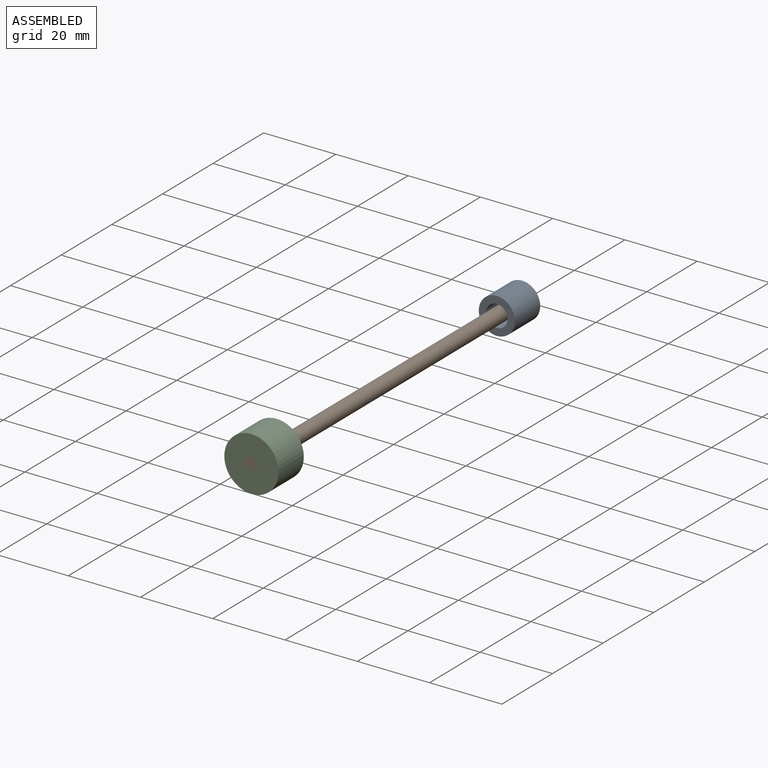
[diagram: assembled view]
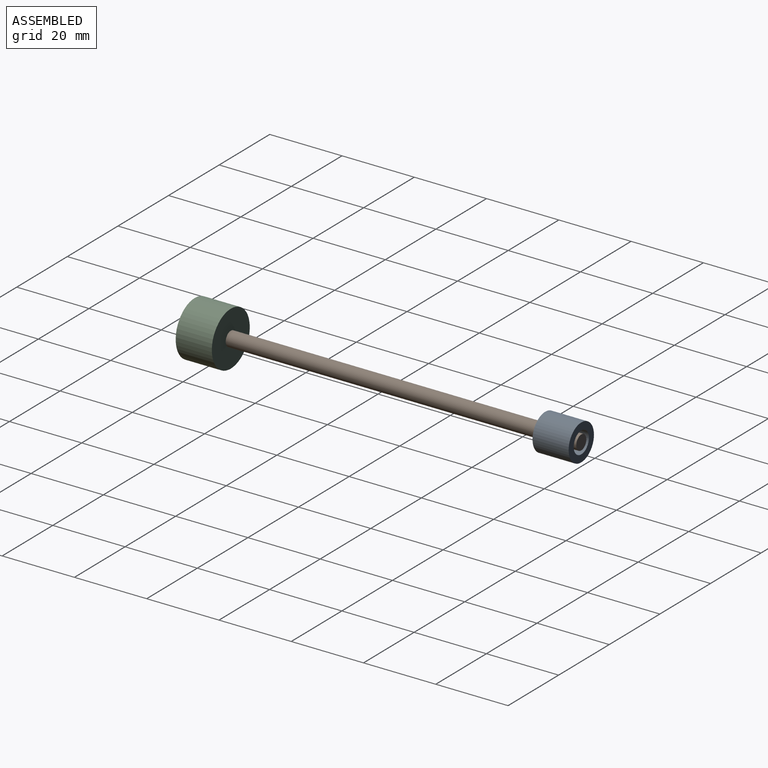
[diagram: assembled view, second angle]
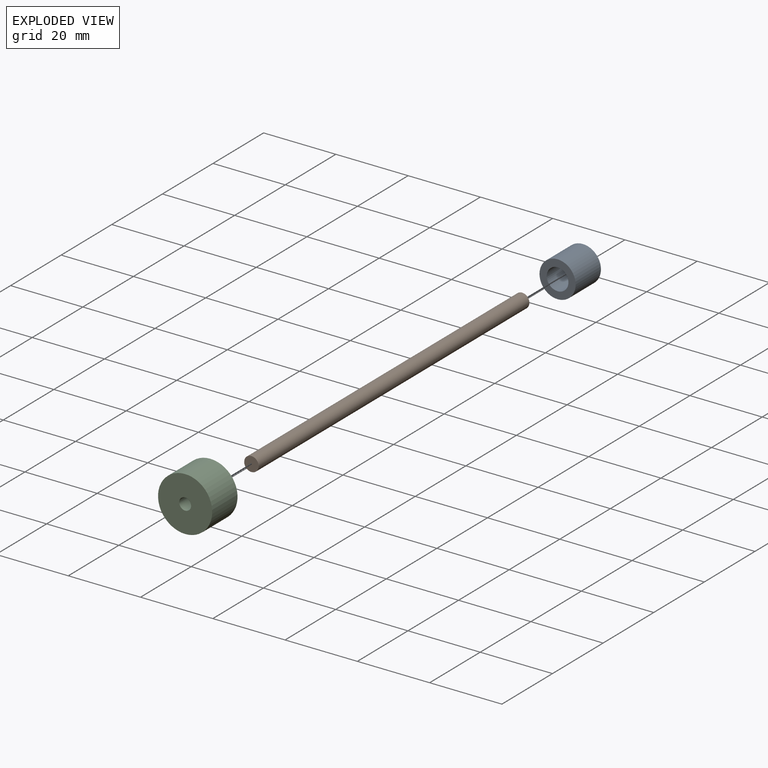
[diagram: exploded view]
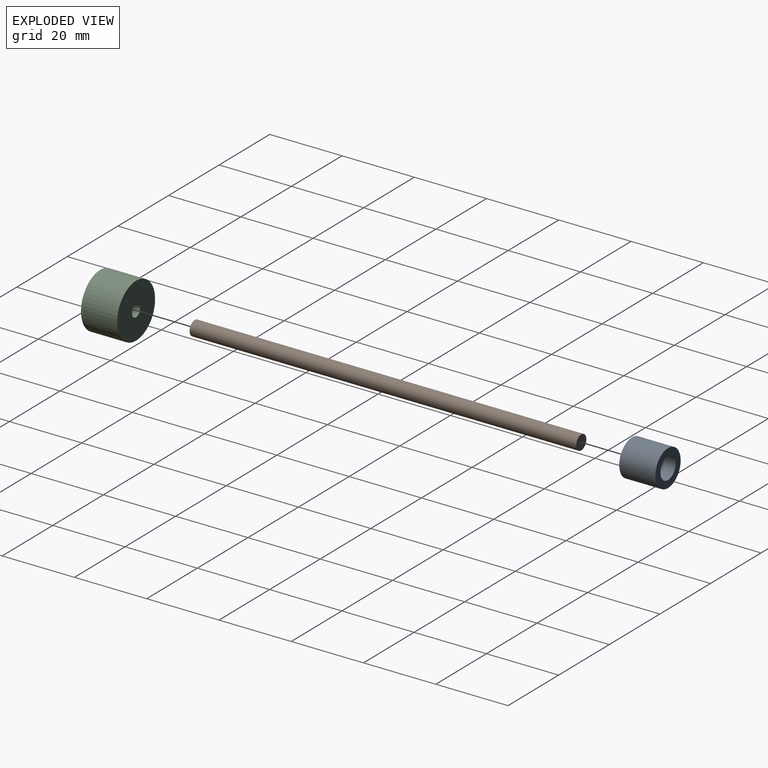
[diagram: exploded view, second angle]
ASSEMBLY  parts=3 mates=2
PART A: 4 faces, bbox 10x10x10 mm
  f0: cylinder r=5mm len=10mm, axis (0,1,0), area 314.2mm2, adj f1,f2
  f1: plane 10x10mm, normal (0,-1,0), area 50.3mm2, adj f0,f3
  f2: plane 10x10mm, normal (0,1,0), area 50.3mm2, adj f0,f3
  f3: cylinder r=3mm len=10mm, axis (0,1,0), area 188.5mm2, adj f1,f2
PART B: 3 faces, bbox 4x107x4 mm
  f0: cylinder r=2mm len=107mm, axis (0,1,0), area 1344.6mm2, adj f1,f2
  f1: plane 4x4mm, normal (0,-1,0), area 12.6mm2, adj f0
  f2: plane 4x4mm, normal (0,1,0), area 12.6mm2, adj f0
PART C: 4 faces, bbox 15x10x15 mm
  f0: cylinder r=7.5mm len=15mm, axis (0,1,0), area 471.2mm2, adj f1,f2
  f1: plane 15x15mm, normal (0,-1,0), area 168.2mm2, adj f0,f3
  f2: plane 15x15mm, normal (0,1,0), area 168.2mm2, adj f0,f3
  f3: cylinder r=1.65mm len=10mm, axis (0,-1,0), area 103.7mm2, adj f1,f2
PLACE A rot(axis=(1,0,0),180deg) t=(-9.13,-26.13,-23.79)mm
PLACE B t=(-9.13,-16.13,-23.79)mm
PLACE C rot(axis=(1,0,0),180deg) t=(-9.13,-123.13,-23.79)mm
MATE fastened A.f0 <-> B.f0  axis (0,1,0) through (-9.13,-16.13,-23.79)mm
MATE fastened C.f0 <-> B.f0  axis (0,1,0) through (-9.13,-123.13,-23.79)mm
